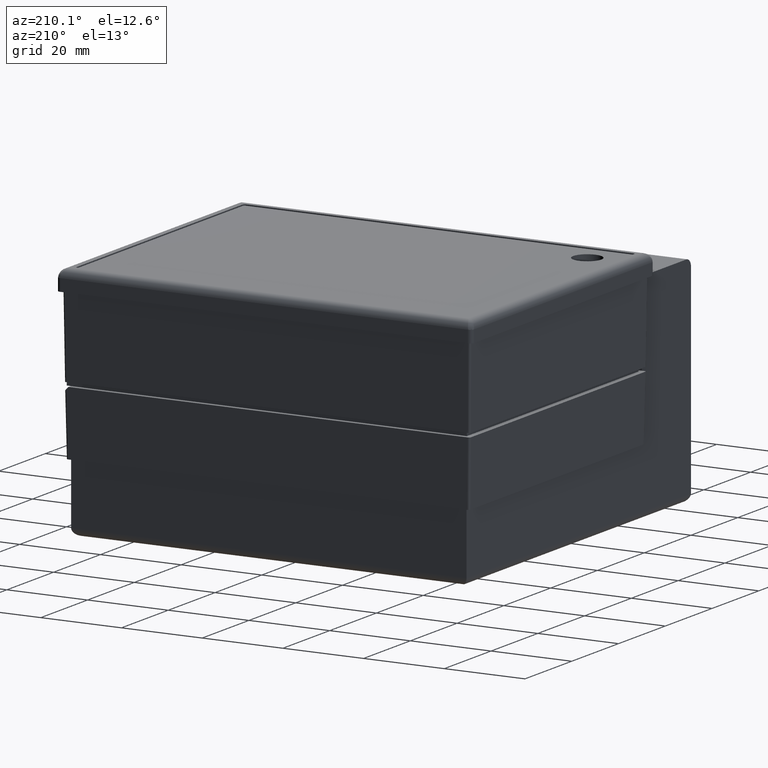
[diagram: clean part render]
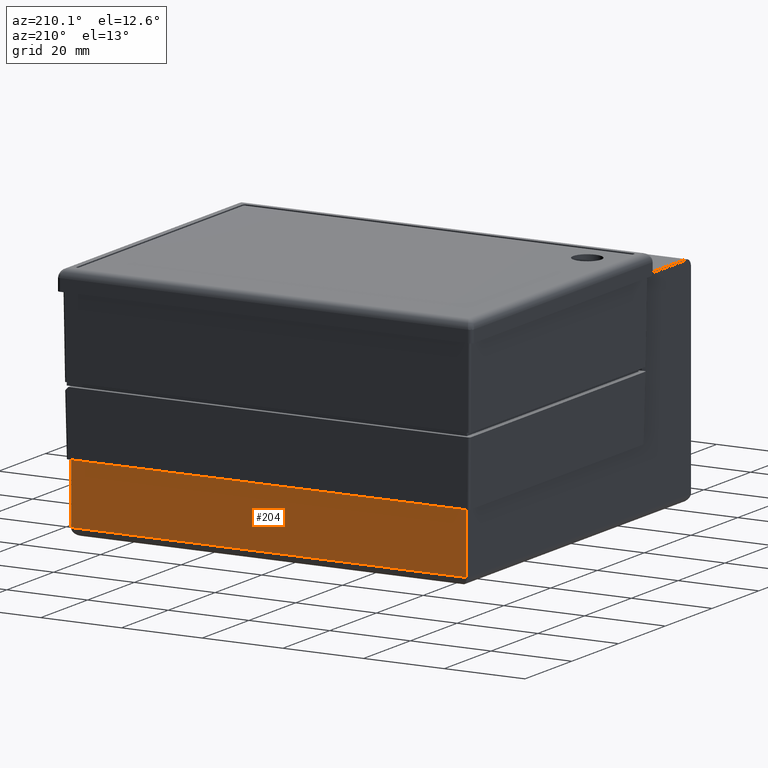
[diagram: same view with one face highlighted and labeled with its STEP entity id]
A machine part, auxiliary view. The second image highlights one B-rep face of the part: STEP entity #204.
In plain terms, the highlighted planar face has unit normal (-0, 1, 0).
Its self-contained STEP definition (entity closure, byte-faithful):
#204 = ADVANCED_FACE( '', ( #542 ), #543, .T. );
#542 = FACE_OUTER_BOUND( '', #1072, .T. );
#543 = PLANE( '', #1073 );
#1072 = EDGE_LOOP( '', ( #2220, #2221, #2222, #2223 ) );
#1073 = AXIS2_PLACEMENT_3D( '', #2224, #2225, #2226 );
#2220 = ORIENTED_EDGE( '', *, *, #3350, .F. );
#2221 = ORIENTED_EDGE( '', *, *, #3351, .T. );
#2222 = ORIENTED_EDGE( '', *, *, #3352, .T. );
#2223 = ORIENTED_EDGE( '', *, *, #3353, .F. );
#2224 = CARTESIAN_POINT( '', ( 49.0000000000000, 37.0000000000000, -59.0000000000000 ) );
#2225 = DIRECTION( '', ( -0.000000000000000, 1.00000000000000, 0.000000000000000 ) );
#2226 = DIRECTION( '', ( 1.00000000000000, 0.000000000000000, 0.000000000000000 ) );
#3350 = EDGE_CURVE( '', #3841, #3842, #3843, .T. );
#3351 = EDGE_CURVE( '', #3841, #3844, #3845, .T. );
#3352 = EDGE_CURVE( '', #3844, #3846, #3847, .T. );
#3353 = EDGE_CURVE( '', #3842, #3846, #3848, .T. );
#3841 = VERTEX_POINT( '', #4523 );
#3842 = VERTEX_POINT( '', #4524 );
#3843 = LINE( '', #4525, #4526 );
#3844 = VERTEX_POINT( '', #4527 );
#3845 = LINE( '', #4528, #4529 );
#3846 = VERTEX_POINT( '', #4530 );
#3847 = LINE( '', #4531, #4532 );
#3848 = LINE( '', #4533, #4534 );
#4523 = CARTESIAN_POINT( '', ( 49.0000000000000, 37.0000000000000, -57.0000000000000 ) );
#4524 = CARTESIAN_POINT( '', ( 49.0000000000000, 37.0000000000000, -42.0000000000000 ) );
#4525 = CARTESIAN_POINT( '', ( 49.0000000000000, 37.0000000000000, -59.0000000000000 ) );
#4526 = VECTOR( '', #5349, 1000.00000000000 );
#4527 = CARTESIAN_POINT( '', ( -49.0000000000000, 37.0000000000000, -57.0000000000000 ) );
#4528 = CARTESIAN_POINT( '', ( -49.0000000000000, 37.0000000000000, -57.0000000000000 ) );
#4529 = VECTOR( '', #5350, 1000.00000000000 );
#4530 = CARTESIAN_POINT( '', ( -49.0000000000000, 37.0000000000000, -42.0000000000000 ) );
#4531 = CARTESIAN_POINT( '', ( -49.0000000000000, 37.0000000000000, -59.0000000000000 ) );
#4532 = VECTOR( '', #5351, 1000.00000000000 );
#4533 = CARTESIAN_POINT( '', ( 49.0000000000000, 37.0000000000000, -42.0000000000000 ) );
#4534 = VECTOR( '', #5352, 1000.00000000000 );
#5349 = DIRECTION( '', ( -0.000000000000000, 0.000000000000000, 1.00000000000000 ) );
#5350 = DIRECTION( '', ( -1.00000000000000, 0.000000000000000, 0.000000000000000 ) );
#5351 = DIRECTION( '', ( -0.000000000000000, 0.000000000000000, 1.00000000000000 ) );
#5352 = DIRECTION( '', ( -1.00000000000000, 0.000000000000000, 0.000000000000000 ) );